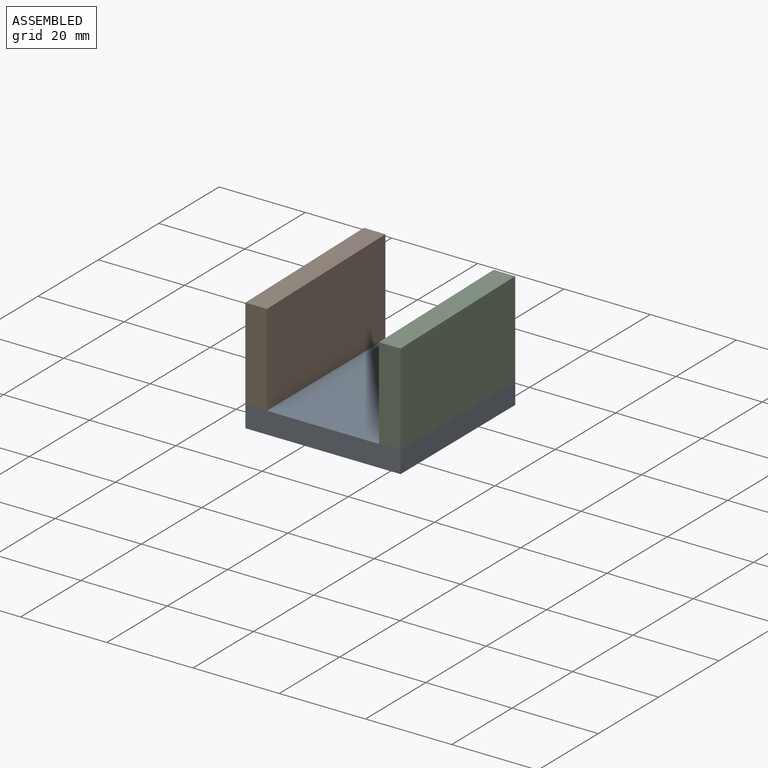
[diagram: assembled view]
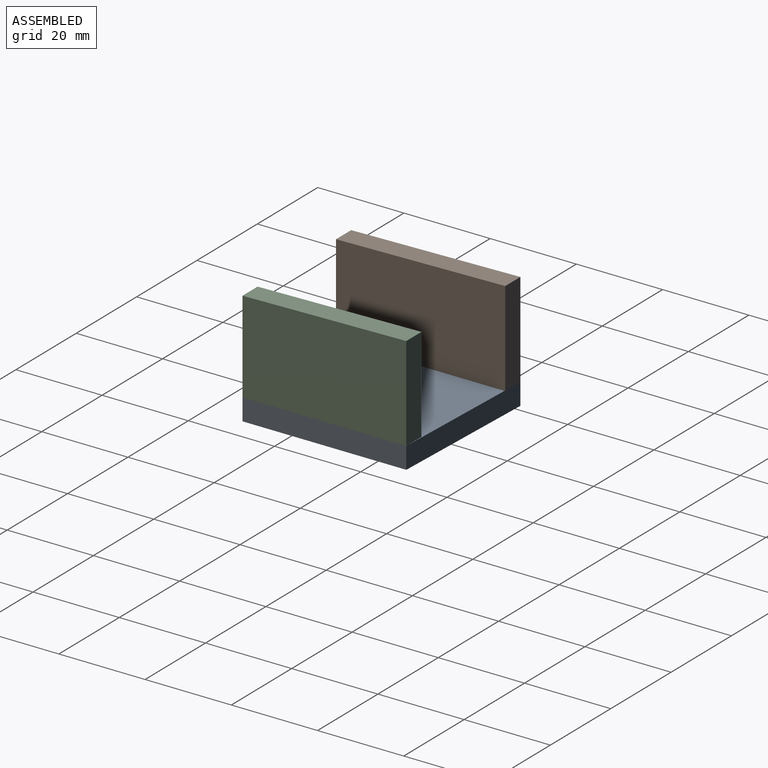
[diagram: assembled view, second angle]
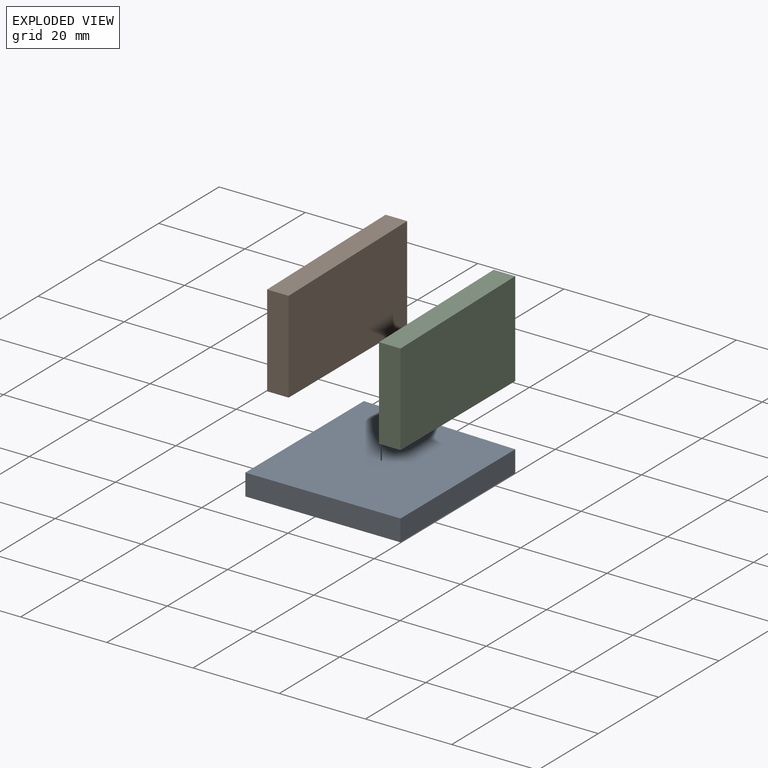
[diagram: exploded view]
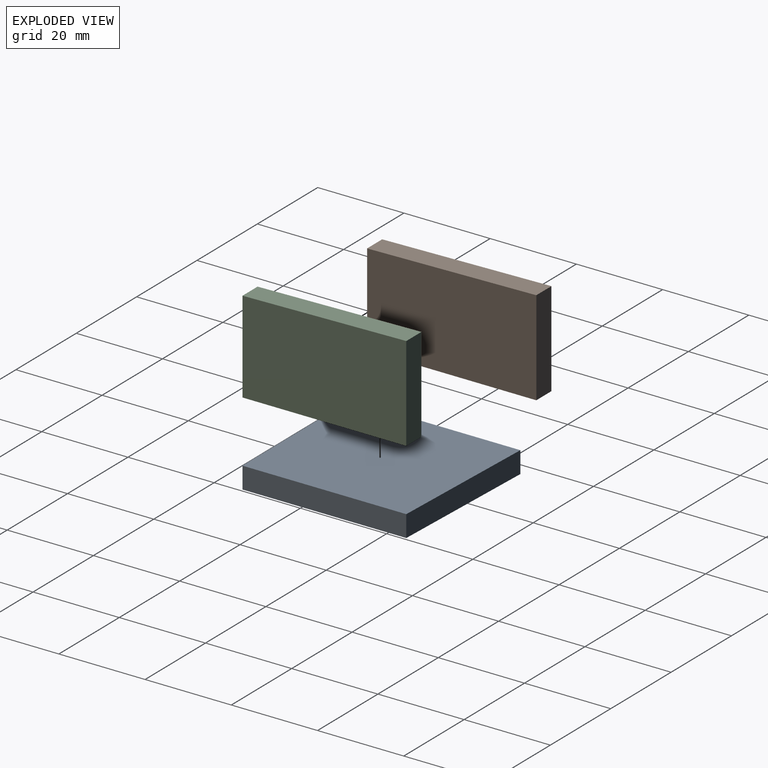
[diagram: exploded view, second angle]
ASSEMBLY  parts=3 mates=2
PART A: 6 faces, bbox 36x39.3x5 mm
  f0: plane 39.26x5mm, normal (-1,0,0), area 196.3mm2, adj f1,f3,f4,f5
  f1: plane 36x5mm, normal (0,-1,0), area 180mm2, adj f0,f2,f4,f5
  f2: plane 38x5mm, normal (1,0,0), area 190mm2, adj f1,f3,f4,f5
  f3: plane 36x5mm, normal (0.03,1,0), area 180.1mm2, adj f0,f2,f4,f5
  f4: plane 39.26x36mm, normal (0,0,1), area 1390.6mm2, adj f0,f1,f2,f3
  f5: plane 39.26x36mm, normal (0,0,-1), area 1390.6mm2, adj f0,f1,f2,f3
PART B: 6 faces, bbox 22x39.3x5 mm
  f0: plane 21.34x5mm, normal (0,-1,0), area 106.7mm2, adj f1,f3,f4,f5
  f1: plane 39.26x5mm, normal (1,0,0), area 196.3mm2, adj f0,f2,f4,f5
  f2: plane 22.02x5mm, normal (0,1,0), area 110.1mm2, adj f1,f3,f4,f5
  f3: plane 39.26x5mm, normal (-1,-0.02,0), area 196.3mm2, adj f0,f2,f4,f5
  f4: plane 39.26x22.02mm, normal (0,0,1), area 851.1mm2, adj f0,f1,f2,f3
  f5: plane 39.26x22.02mm, normal (0,0,-1), area 851.1mm2, adj f0,f1,f2,f3
PART C: 6 faces, bbox 22x38x5 mm
  f0: plane 22x5mm, normal (0,1,0), area 110mm2, adj f1,f3,f4,f5
  f1: plane 38x5mm, normal (-1,0,0), area 190mm2, adj f0,f2,f4,f5
  f2: plane 21.34x5mm, normal (0,-1,0), area 106.7mm2, adj f1,f3,f4,f5
  f3: plane 38x5mm, normal (1,-0.02,0), area 190mm2, adj f0,f2,f4,f5
  f4: plane 38x22mm, normal (0,0,1), area 823.4mm2, adj f0,f1,f2,f3
  f5: plane 38x22mm, normal (0,0,-1), area 823.4mm2, adj f0,f1,f2,f3
PLACE A at identity fixed
PLACE B rot(axis=(0,1,0),90deg) t=(-134.98,0,-134.98)mm
PLACE C rot(axis=(0,-1,0),90deg) t=(-98.98,0,98.98)mm
MATE fastened C.f2 <-> A.f1  axis (0,-1,0) through (-98.98,-52.71,5)mm
MATE fastened B.f0 <-> A.f1  axis (0,-1,0) through (-134.98,-52.71,5)mm
